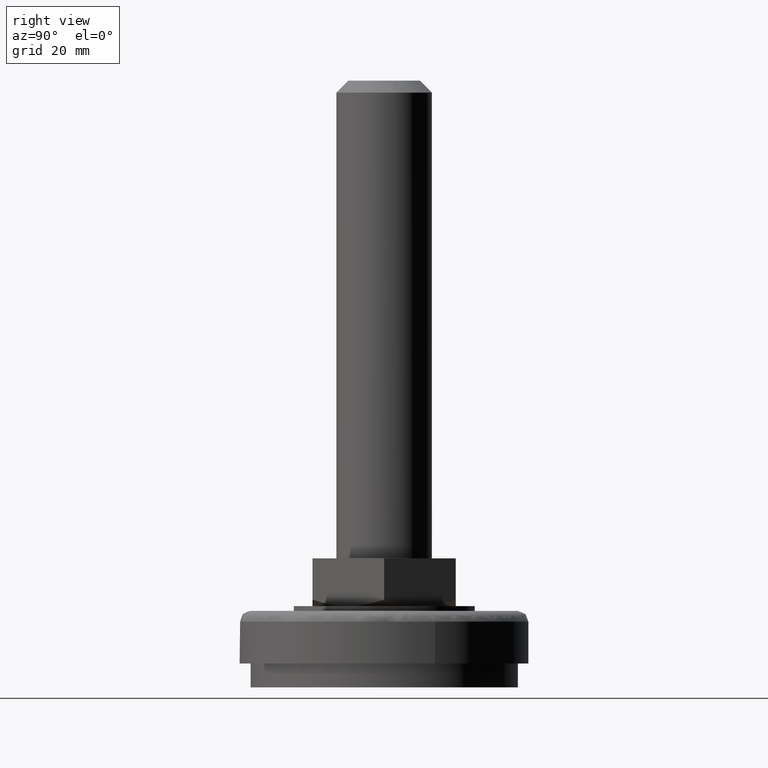
[diagram: clean part render]
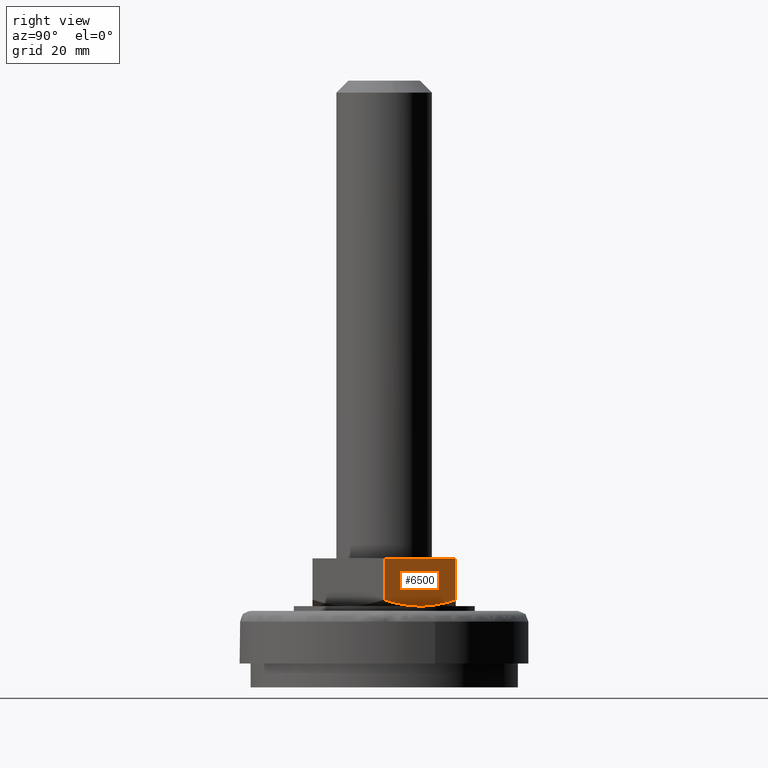
[diagram: same view with one face highlighted and labeled with its STEP entity id]
A machine part, right view. The second image highlights one B-rep face of the part: STEP entity #6500.
In plain terms, the highlighted face is a freeform B-spline surface patch.
Its self-contained STEP definition (entity closure, byte-faithful):
#4825=CARTESIAN_POINT('',(13.032687735863140,7.391202111618560,17.001843396613818));
#4826=VERTEX_POINT('',#4825);
#4832=CARTESIAN_POINT('',(17.300000000000001,-5.941482E-017,18.339745951230949));
#4833=VERTEX_POINT('',#4832);
#4834=CARTESIAN_POINT('',(17.300000000000001,-5.941482E-017,18.339745951230949));
#4835=CARTESIAN_POINT('',(16.592941722767868,1.224660865429847,17.931525664538011));
#4836=CARTESIAN_POINT('',(15.880722203566330,2.458261264219869,17.595166574800238));
#4837=CARTESIAN_POINT('',(14.801235094892670,4.327987790728801,17.245981053792448));
#4838=CARTESIAN_POINT('',(14.439541958482740,4.954458682477338,17.155540189446299));
#4839=CARTESIAN_POINT('',(13.730006321716210,6.183410460508087,17.036431680644800));
#4840=CARTESIAN_POINT('',(13.382364860527410,6.785543136735836,17.004964920139731));
#4841=CARTESIAN_POINT('',(13.032687735863140,7.391202111618560,17.001843396613818));
#4842=B_SPLINE_CURVE_WITH_KNOTS('',3,(#4834,#4835,#4836,#4837,#4838,#4839,#4840,#4841),.UNSPECIFIED.,.F.,.U.,(4,2,2,4),(0.0,0.250000000000000,0.375000000000000,0.493791454674779),.UNSPECIFIED.);
#4843=EDGE_CURVE('',#4833,#4826,#4842,.T.);
#4991=CARTESIAN_POINT('',(8.639746000000001,15.0,18.345671394023451));
#4992=VERTEX_POINT('',#4991);
#5017=CARTESIAN_POINT('',(13.032687735863140,7.391202111618560,17.001843396613818));
#5018=CARTESIAN_POINT('',(13.014411931020380,7.422856308220808,17.001680640840139));
#5019=CARTESIAN_POINT('',(12.996130750472460,7.454520241890513,17.001594943532890));
#5020=CARTESIAN_POINT('',(12.885799685170831,7.645619253481211,17.001546577078152));
#5021=CARTESIAN_POINT('',(12.793614645803320,7.805288426061216,17.003465697697461));
#5022=CARTESIAN_POINT('',(12.608961067811590,8.125117806339882,17.011251166375370));
#5023=CARTESIAN_POINT('',(12.516661840701410,8.284984757892667,17.017113104138520));
#5024=CARTESIAN_POINT('',(12.240427566274530,8.763436558082738,17.040486526452501));
#5025=CARTESIAN_POINT('',(12.056912984918901,9.081293138309404,17.063800979005549));
#5026=CARTESIAN_POINT('',(11.508210259183780,10.031674141687240,17.155931109065520));
#5027=CARTESIAN_POINT('',(11.144867414517440,10.661002411966029,17.246985155436679));
#5028=CARTESIAN_POINT('',(10.061320491401860,12.537760743388390,17.598259512653598));
#5029=CARTESIAN_POINT('',(9.347572270797725,13.774008930688890,17.936281682498691));
#5030=CARTESIAN_POINT('',(8.639746000000001,15.0,18.345671394023451));
#5031=B_SPLINE_CURVE_WITH_KNOTS('',3,(#5017,#5018,#5019,#5020,#5021,#5022,#5023,#5024,#5025,#5026,#5027,#5028,#5029,#5030),.UNSPECIFIED.,.F.,.U.,(4,2,2,2,2,2,4),(0.493791454674779,0.500000000000001,0.531250000000001,0.562500000000001,0.625000000000001,0.750000000000001,1.0),.UNSPECIFIED.);
#5032=EDGE_CURVE('',#4826,#4992,#5031,.T.);
#6366=CARTESIAN_POINT('',(8.639746000000001,15.0,27.0));
#6367=VERTEX_POINT('',#6366);
#6394=CARTESIAN_POINT('',(17.300000000000001,0.0,27.0));
#6395=VERTEX_POINT('',#6394);
#6401=CARTESIAN_POINT('',(8.639746000000001,15.0,27.0));
#6402=CARTESIAN_POINT('',(17.300000000000001,0.0,27.0));
#6403=QUASI_UNIFORM_CURVE('',1,(#6401,#6402),.UNSPECIFIED.,.F.,.U.);
#6404=EDGE_CURVE('',#6367,#6395,#6403,.T.);
#6475=CARTESIAN_POINT('',(17.300000000000001,-5.941482E-017,18.339745951230949));
#6476=CARTESIAN_POINT('',(17.300000000000001,0.0,27.0));
#6477=QUASI_UNIFORM_CURVE('',1,(#6475,#6476),.UNSPECIFIED.,.F.,.U.);
#6478=EDGE_CURVE('',#4833,#6395,#6477,.T.);
#6484=CARTESIAN_POINT('',(8.207166279129492,15.749250058145821,16.502434514433169));
#6485=CARTESIAN_POINT('',(17.732579256298290,-0.749249253483108,16.502434514433169));
#6486=CARTESIAN_POINT('',(8.207166279129492,15.749250058145821,27.499408217723708));
#6487=CARTESIAN_POINT('',(17.732579256298290,-0.749249253483108,27.499408217723708));
#6488=B_SPLINE_SURFACE_WITH_KNOTS('',1,1,((#6484,#6486),(#6485,#6487)),.UNSPECIFIED.,.F.,.F.,.U.,(2,2),(2,2),(0.0,19.050826016775130),(0.0,10.996973703290539),.UNSPECIFIED.);
#6489=ORIENTED_EDGE('',*,*,#6478,.F.);
#6490=ORIENTED_EDGE('',*,*,#4843,.T.);
#6491=ORIENTED_EDGE('',*,*,#5032,.T.);
#6492=CARTESIAN_POINT('',(8.639746000000001,15.0,18.345671394023451));
#6493=CARTESIAN_POINT('',(8.639746000000001,15.0,27.0));
#6494=QUASI_UNIFORM_CURVE('',1,(#6492,#6493),.UNSPECIFIED.,.F.,.U.);
#6495=EDGE_CURVE('',#4992,#6367,#6494,.T.);
#6496=ORIENTED_EDGE('',*,*,#6495,.T.);
#6497=ORIENTED_EDGE('',*,*,#6404,.T.);
#6498=EDGE_LOOP('',(#6489,#6490,#6491,#6496,#6497));
#6499=FACE_OUTER_BOUND('',#6498,.T.);
#6500=ADVANCED_FACE('',(#6499),#6488,.F.);